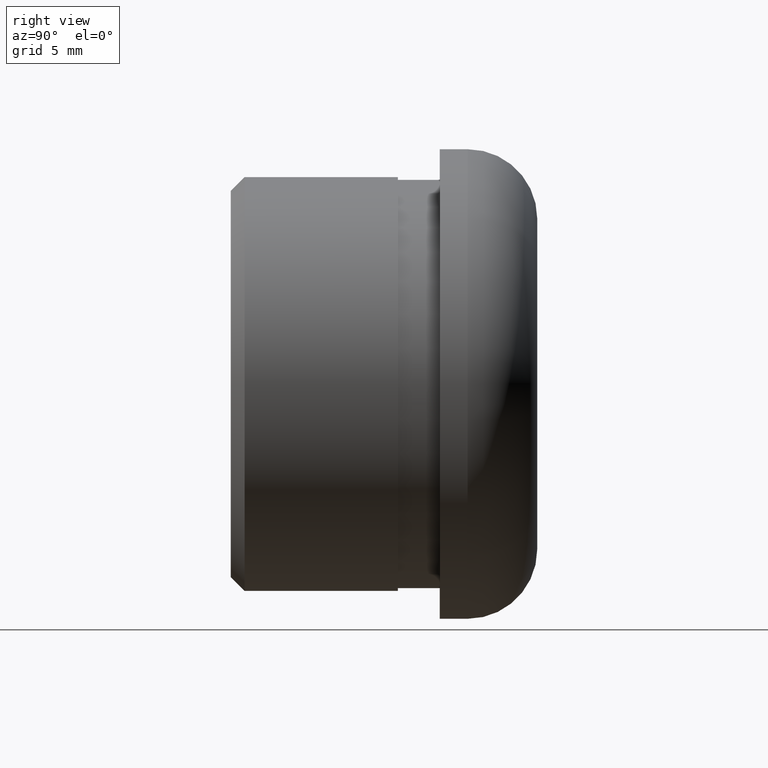
[diagram: clean part render]
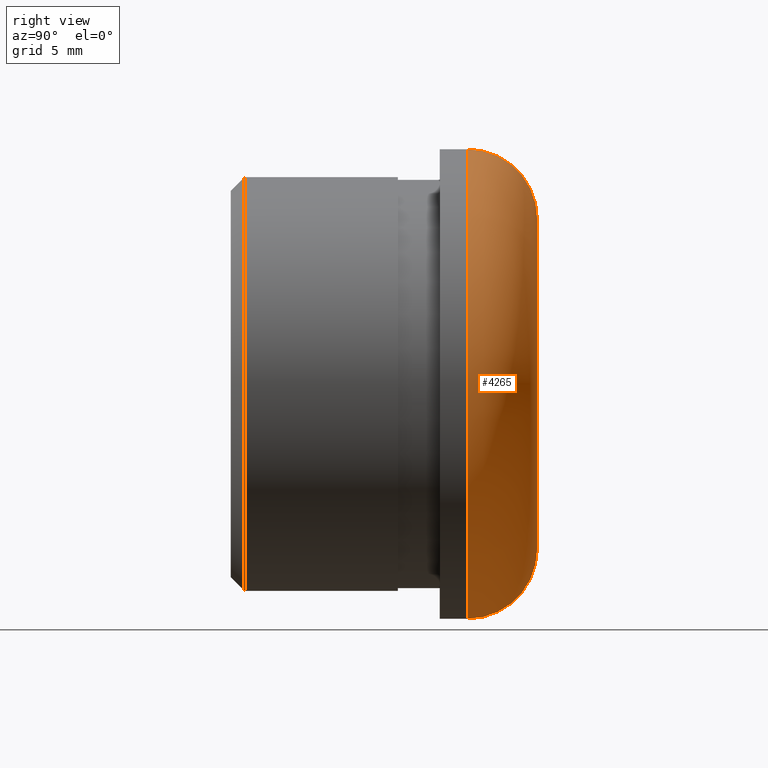
[diagram: same view with one face highlighted and labeled with its STEP entity id]
A machine part, right view. The second image highlights one B-rep face of the part: STEP entity #4265.
In plain terms, the highlighted toroidal blend (fillet) surface has major radius 11.85 mm and minor (blend) radius 5 mm.
Its self-contained STEP definition (entity closure, byte-faithful):
#282 = CARTESIAN_POINT ( 'NONE',  ( 0.0000000000000000000, 22.00000000000000000, -11.85000000000000300 ) ) ;
#1956 = AXIS2_PLACEMENT_3D ( 'NONE', #5843, #4726, #2524 ) ;
#2062 = DIRECTION ( 'NONE',  ( -0.0000000000000000000, -1.000000000000000000, -0.0000000000000000000 ) ) ;
#2190 = ORIENTED_EDGE ( 'NONE', *, *, #3649, .F. ) ;
#2309 = CARTESIAN_POINT ( 'NONE',  ( 1.757368156776452400E-015, 22.00000000000000000, 11.85000000000000300 ) ) ;
#2426 = CIRCLE ( 'NONE', #14314, 16.85000000000000500 ) ;
#2524 = DIRECTION ( 'NONE',  ( -1.224646799147353200E-016, 0.0000000000000000000, -1.000000000000000000 ) ) ;
#2671 = EDGE_CURVE ( 'NONE', #10256, #11466, #5596, .T. ) ;
#3649 = EDGE_CURVE ( 'NONE', #10256, #9394, #11744, .T. ) ;
#4185 = FACE_OUTER_BOUND ( 'NONE', #4435, .T. ) ;
#4265 = ADVANCED_FACE ( 'NONE', ( #4185 ), #12798, .T. ) ;
#4435 = EDGE_LOOP ( 'NONE', ( #11340, #6510, #6902, #2190 ) ) ;
#4726 = DIRECTION ( 'NONE',  ( 1.000000000000000000, 0.0000000000000000000, -1.224646799147353200E-016 ) ) ;
#5188 = DIRECTION ( 'NONE',  ( 0.0000000000000000000, 0.0000000000000000000, 1.000000000000000000 ) ) ;
#5441 = DIRECTION ( 'NONE',  ( 0.0000000000000000000, 0.0000000000000000000, -1.000000000000000000 ) ) ;
#5596 = CIRCLE ( 'NONE', #11126, 11.85000000000000300 ) ;
#5754 = DIRECTION ( 'NONE',  ( -0.0000000000000000000, -1.000000000000000000, -0.0000000000000000000 ) ) ;
#5843 = CARTESIAN_POINT ( 'NONE',  ( 1.451206456989613900E-015, 16.99999999999999600, 11.85000000000000300 ) ) ;
#6397 = EDGE_CURVE ( 'NONE', #11466, #8628, #7935, .T. ) ;
#6510 = ORIENTED_EDGE ( 'NONE', *, *, #6397, .T. ) ;
#6555 = DIRECTION ( 'NONE',  ( -0.0000000000000000000, -1.000000000000000000, -0.0000000000000000000 ) ) ;
#6720 = AXIS2_PLACEMENT_3D ( 'NONE', #7604, #9684, #5188 ) ;
#6902 = ORIENTED_EDGE ( 'NONE', *, *, #7095, .F. ) ;
#7022 = DIRECTION ( 'NONE',  ( 0.0000000000000000000, 0.0000000000000000000, -1.000000000000000000 ) ) ;
#7095 = EDGE_CURVE ( 'NONE', #9394, #8628, #2426, .T. ) ;
#7604 = CARTESIAN_POINT ( 'NONE',  ( 0.0000000000000000000, 16.99999999999999600, -11.85000000000000300 ) ) ;
#7935 = CIRCLE ( 'NONE', #1956, 5.000000000000000900 ) ;
#8628 = VERTEX_POINT ( 'NONE', #8861 ) ;
#8861 = CARTESIAN_POINT ( 'NONE',  ( 2.063529856563290600E-015, 16.99999999999999600, 16.85000000000000500 ) ) ;
#8964 = CARTESIAN_POINT ( 'NONE',  ( 0.0000000000000000000, 16.99999999999999600, 0.0000000000000000000 ) ) ;
#9394 = VERTEX_POINT ( 'NONE', #12254 ) ;
#9684 = DIRECTION ( 'NONE',  ( -1.000000000000000000, 0.0000000000000000000, 0.0000000000000000000 ) ) ;
#10256 = VERTEX_POINT ( 'NONE', #282 ) ;
#11126 = AXIS2_PLACEMENT_3D ( 'NONE', #12480, #5754, #7022 ) ;
#11340 = ORIENTED_EDGE ( 'NONE', *, *, #2671, .T. ) ;
#11466 = VERTEX_POINT ( 'NONE', #2309 ) ;
#11744 = CIRCLE ( 'NONE', #6720, 5.000000000000000900 ) ;
#12094 = DIRECTION ( 'NONE',  ( 0.0000000000000000000, 0.0000000000000000000, -1.000000000000000000 ) ) ;
#12254 = CARTESIAN_POINT ( 'NONE',  ( 0.0000000000000000000, 16.99999999999999600, -16.85000000000000500 ) ) ;
#12480 = CARTESIAN_POINT ( 'NONE',  ( 0.0000000000000000000, 22.00000000000000000, 0.0000000000000000000 ) ) ;
#12798 = TOROIDAL_SURFACE ( 'NONE', #13615, 11.85000000000000300, 5.000000000000000900 ) ;
#13293 = CARTESIAN_POINT ( 'NONE',  ( 0.0000000000000000000, 16.99999999999999600, 0.0000000000000000000 ) ) ;
#13615 = AXIS2_PLACEMENT_3D ( 'NONE', #13293, #6555, #12094 ) ;
#14314 = AXIS2_PLACEMENT_3D ( 'NONE', #8964, #2062, #5441 ) ;